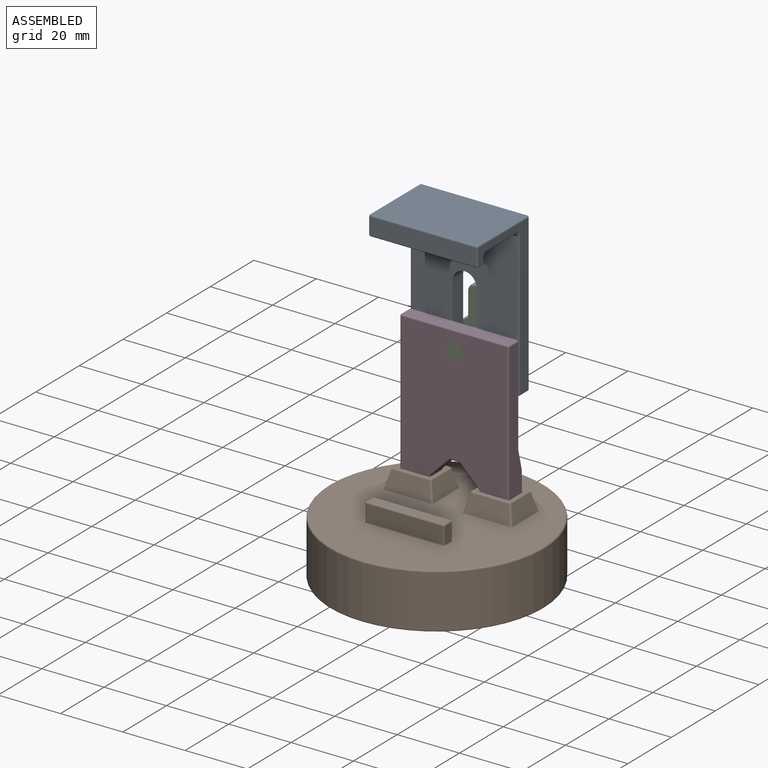
[diagram: assembled view]
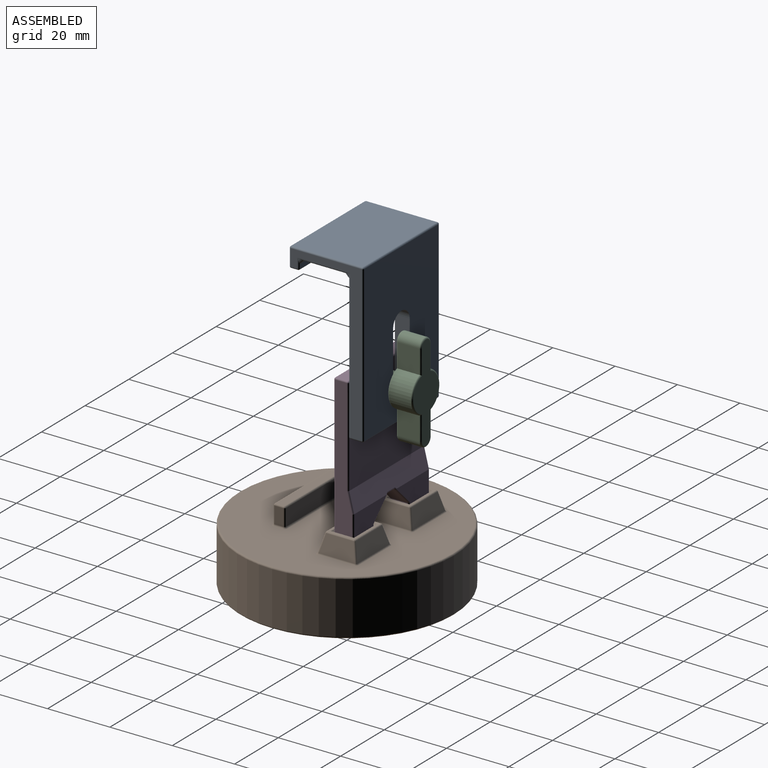
[diagram: assembled view, second angle]
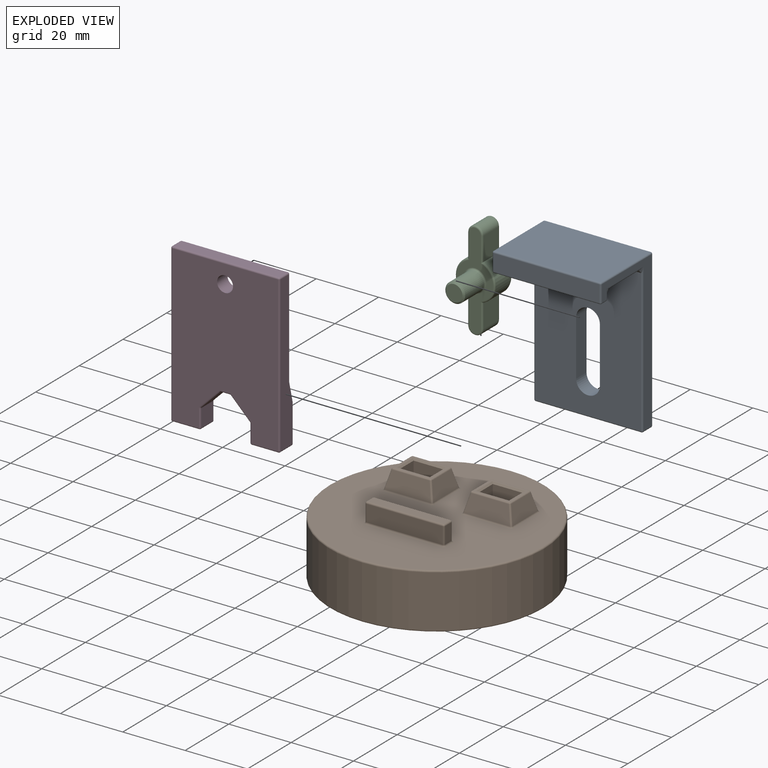
[diagram: exploded view]
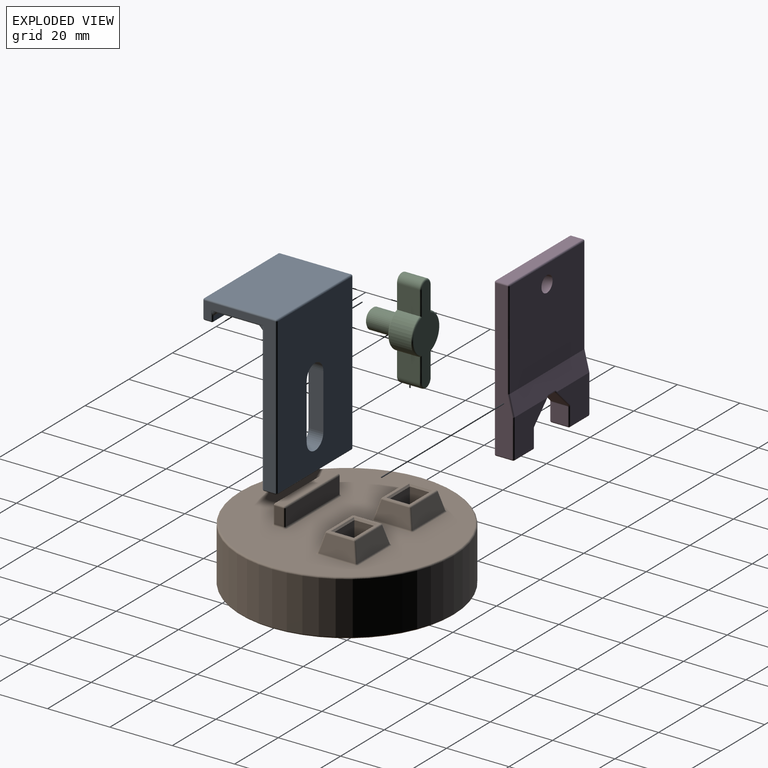
[diagram: exploded view, second angle]
ASSEMBLY  parts=4 mates=4
PART A: 54 faces, bbox 34.9x23.8x50.8 mm
  f0: plane 49.78x33.91mm, normal (0,-1,0), area 1507mm2, adj f10,f11,f12,f13,f33,f42,f43,f47
  f1: plane 33.91x3.75mm, normal (0,0,-1), area 127mm2, adj f36,f41,f44,f47
  f2: plane 45.85x33.91mm, normal (0,1,0), area 1373.5mm2, adj f10,f11,f12,f13,f31,f35,f36,f49
  f3: plane 33.91x13.34mm, normal (0,0,-1), area 452.2mm2, adj f27,f30,f49,f52
  f4: plane 33.91x1.4mm, normal (0,-1,0), area 47.4mm2, adj f17,f22,f26,f52
  f5: plane 33.91x2.16mm, normal (0,0,-1), area 73.2mm2, adj f14,f15,f16,f17
  f6: plane 33.91x5.33mm, normal (0,1,0), area 180.9mm2, adj f15,f23,f24,f25
  f7: plane 33.91x22.8mm, normal (0,0,1), area 773mm2, adj f24,f32,f33,f34
  f8: plane 49.78x22.8mm, normal (-1,0,0), area 234.5mm2, adj f14,f22,f23,f27,f31,f32,f41,f42
  f9: plane 49.78x22.8mm, normal (1,0,0), area 234.5mm2, adj f16,f25,f26,f30,f34,f35,f43,f44
  f10: plane 17.78x4.76mm, normal (1,0,0), area 84.7mm2, adj f0,f2,f11,f13
  f11: cylinder r=3.81mm len=7.62mm, axis (0,-1,0), area 57mm2, adj f0,f2,f10,f12
  f12: plane 17.78x4.76mm, normal (-1,0,0), area 84.7mm2, adj f0,f2,f11,f13
  f13: cylinder r=3.81mm len=7.62mm, axis (0,-1,0), area 57mm2, adj f0,f2,f10,f12
  f14: cylinder r=0.51mm len=2.16mm, axis (0,-1,0), area 1.7mm2, adj f5,f8,f18,f19
  f15: cylinder r=0.51mm len=33.91mm, axis (-1,0,0), area 27.1mm2, adj f5,f6,f19,f20
  f16: cylinder r=0.51mm len=2.16mm, axis (0,1,0), area 1.7mm2, adj f5,f9,f20,f21
  f17: cylinder r=0.51mm len=33.91mm, axis (1,0,0), area 27.1mm2, adj f4,f5,f18,f21
  f18: sphere r=0.51mm, area 0.4mm2, adj f14,f17,f22
  f19: sphere r=0.51mm, area 0.6mm2, adj f14,f15,f23
  f20: sphere r=0.51mm, area 0.3mm2, adj f15,f16,f25
  f21: sphere r=0.51mm, area 0.4mm2, adj f16,f17,f26
  f22: cylinder r=0.51mm len=3.18mm, axis (0,0,1), area 1.6mm2, adj f4,f8,f18,f53
  f23: cylinder r=0.51mm len=5.33mm, axis (0,0,-1), area 4.3mm2, adj f6,f8,f19,f28
  f24: cylinder r=0.51mm len=33.91mm, axis (-1,0,0), area 27.1mm2, adj f6,f7,f28,f29
  f25: cylinder r=0.51mm len=5.33mm, axis (0,0,1), area 4.3mm2, adj f6,f9,f20,f29
  f26: cylinder r=0.51mm len=3.18mm, axis (0,0,-1), area 1.6mm2, adj f4,f9,f21,f51
  f27: cylinder r=0.51mm len=16.89mm, axis (0,-1,0), area 12.1mm2, adj f3,f8,f50,f53
  f28: sphere r=0.51mm, area 0.6mm2, adj f23,f24,f32
  f29: sphere r=0.51mm, area 0.3mm2, adj f24,f25,f34
  f30: cylinder r=0.51mm len=16.89mm, axis (0,1,0), area 12.1mm2, adj f3,f9,f48,f51
  f31: cylinder r=0.51mm len=47.63mm, axis (0,0,-1), area 37.1mm2, adj f2,f8,f37,f50
  f32: cylinder r=0.51mm len=22.8mm, axis (0,1,0), area 18.2mm2, adj f7,f8,f28,f38
  f33: cylinder r=0.51mm len=33.91mm, axis (1,0,0), area 27.1mm2, adj f0,f7,f38,f39
  f34: cylinder r=0.51mm len=22.8mm, axis (0,-1,0), area 18.2mm2, adj f7,f9,f29,f39
  f35: cylinder r=0.51mm len=47.63mm, axis (0,0,1), area 37.1mm2, adj f2,f9,f40,f48
  f36: cylinder r=0.51mm len=33.91mm, axis (-1,0,0), area 27.1mm2, adj f1,f2,f37,f40
  f37: sphere r=0.51mm, area 0.6mm2, adj f31,f36,f41
  f38: sphere r=0.51mm, area 0.4mm2, adj f32,f33,f42
  f39: sphere r=0.51mm, area 0.3mm2, adj f33,f34,f43
  f40: sphere r=0.51mm, area 0.3mm2, adj f35,f36,f44
  f41: cylinder r=0.51mm len=3.75mm, axis (0,-1,0), area 3mm2, adj f1,f8,f37,f45
  f42: cylinder r=0.51mm len=49.78mm, axis (0,0,1), area 39.7mm2, adj f0,f8,f38,f45
  f43: cylinder r=0.51mm len=49.78mm, axis (0,0,-1), area 39.7mm2, adj f0,f9,f39,f46
  f44: cylinder r=0.51mm len=3.75mm, axis (0,1,0), area 3mm2, adj f1,f9,f40,f46
  f45: sphere r=0.51mm, area 0.6mm2, adj f41,f42,f47
  f46: sphere r=0.51mm, area 0.4mm2, adj f43,f44,f47
  f47: cylinder r=0.51mm len=33.91mm, axis (-1,0,0), area 27.1mm2, adj f0,f1,f45,f46
  f48: bspline ~1.8x1.8mm, area 1mm2, adj f30,f35,f49
  f49: plane 33.91x1.27mm, normal (0,0.71,-0.71), area 60.9mm2, adj f2,f3,f48,f50
  f50: bspline ~1.8x1.8mm, area 1mm2, adj f27,f31,f49
  f51: bspline ~1.8x1.8mm, area 1mm2, adj f26,f30,f52
  f52: plane 33.91x1.27mm, normal (0,-0.71,-0.71), area 60.9mm2, adj f3,f4,f51,f53
  f53: bspline ~1.8x1.8mm, area 1mm2, adj f22,f27,f52
PART B: 112 faces, bbox 75.4x75.4x25.4 mm
  f0: plane 11.91x8.73mm, normal (0,0,1), area 26.3mm2, adj f24,f27,f31,f32,f108,f109,f110,f111
  f1: plane 63.4x61.61mm, normal (0,0,-1), area 637.3mm2, adj f6,f7,f8,f13,f16
  f2: bspline ~73.37x63.54mm, area 1319mm2, adj f5,f6,f7,f9,f16,f17
  f3: cylinder r=34.29mm len=68.58mm, axis (0,0,-1), area 3611.8mm2, adj f18,f19
  f4: plane 67.84x67.84mm, normal (0,0,1), area 3010.5mm2, adj f19,f29,f34,f35,f38,f39,f41,f42
  f5: plane 67.6x67.6mm, normal (0,0,-1), area 418.1mm2, adj f2,f9,f17,f18
  f6: cylinder r=31.5mm len=63mm, axis (0,0,-1), area 1774.8mm2, adj f1,f2,f8,f9,f16,f17
  f7: cylinder r=29.25mm len=58.5mm, axis (0,0,1), area 126.8mm2, adj f1,f2,f8,f9,f16
  f8: bspline ~72.75x63mm, area 1215.4mm2, adj f1,f6,f7,f9
  f9: plane 12.67x5.78mm, normal (0.93,0.37,0), area 9.5mm2, adj f2,f5,f6,f7,f8,f17
  f10: cone r=27.43mm half-angle=45deg, axis (0,0,1), area 644.5mm2, adj f13,f15
  f11: cylinder r=24.13mm len=48.26mm, axis (0,0,1), area 369.1mm2, adj f14,f15
  f12: plane 47.75x47.75mm, normal (0,0,-1), area 1790.9mm2, adj f14
  f13: torus R=27.54mm, axis (0,0,-1), area 34.4mm2, adj f1,f10
  f14: torus R=23.88mm, axis (0,0,-1), area 60.3mm2, adj f11,f12
  f15: torus R=24.38mm, axis (0,0,-1), area 91.4mm2, adj f10,f11
  f16: bspline ~28.02x20.74mm, area 2.9mm2, adj f1,f2,f6,f7
  f17: torus R=31.75mm, axis (0,0,1), area 76.9mm2, adj f2,f5,f6,f9
  f18: torus R=33.78mm, axis (0,0,1), area 171mm2, adj f3,f5
  f19: torus R=33.78mm, axis (0,0,1), area 171mm2, adj f3,f4
  f20: plane 14.7x5.58mm, normal (0,0.97,0.24), area 76.5mm2, adj f30,f31,f39,f40
  f21: plane 11.52x5.58mm, normal (0.97,0,0.24), area 58.3mm2, adj f24,f28,f29,f30
  f22: plane 14.7x5.58mm, normal (0,-0.97,0.24), area 76.5mm2, adj f27,f28,f37,f38
  f23: plane 11.52x5.58mm, normal (-0.97,0,0.24), area 58.3mm2, adj f32,f37,f40,f43
  f24: cylinder r=0.51mm len=8.73mm, axis (0,-1,0), area 5.9mm2, adj f0,f21,f25,f26
  f25: sphere r=0.51mm, area 0.3mm2, adj f24,f27,f28
  f26: sphere r=0.51mm, area 0.2mm2, adj f24,f30,f31
  f27: cylinder r=0.51mm len=11.91mm, axis (1,0,0), area 8mm2, adj f0,f22,f25,f33
  f28: cylinder r=0.51mm len=5.63mm, axis (-0.24,0.24,0.94), area 4.5mm2, adj f21,f22,f25,f34
  f29: cylinder r=0.51mm len=11.52mm, axis (0,1,0), area 7.8mm2, adj f4,f21,f34,f35
  f30: cylinder r=0.51mm len=5.63mm, axis (0.24,0.24,-0.94), area 4.5mm2, adj f20,f21,f26,f35
  f31: cylinder r=0.51mm len=11.91mm, axis (1,0,0), area 8mm2, adj f0,f20,f26,f36
  f32: cylinder r=0.51mm len=8.73mm, axis (0,-1,0), area 5.9mm2, adj f0,f23,f33,f36
  f33: sphere r=0.51mm, area 0.2mm2, adj f27,f32,f37
  f34: bspline ~1.04x1.02mm, area 0.7mm2, adj f4,f28,f29,f38
  f35: bspline ~1.01x1.01mm, area 0.7mm2, adj f4,f29,f30,f39
  f36: sphere r=0.51mm, area 0.3mm2, adj f31,f32,f40
  f37: cylinder r=0.51mm len=5.63mm, axis (-0.24,-0.24,-0.94), area 4.5mm2, adj f22,f23,f33,f41
  f38: cylinder r=0.51mm len=14.7mm, axis (-1,0,0), area 9.9mm2, adj f4,f22,f34,f41
  f39: cylinder r=0.51mm len=14.7mm, axis (-1,0,0), area 9.9mm2, adj f4,f20,f35,f42
  f40: cylinder r=0.51mm len=5.63mm, axis (0.24,-0.24,0.94), area 4.5mm2, adj f20,f23,f36,f42
  f41: bspline ~1.01x1.01mm, area 0.7mm2, adj f4,f37,f38,f43
  f42: bspline ~1.04x1.02mm, area 0.7mm2, adj f4,f39,f40,f43
  f43: cylinder r=0.51mm len=11.52mm, axis (0,1,0), area 7.8mm2, adj f4,f23,f41,f42
  f44: plane 6.35x5.84mm, normal (-1,0,0), area 37.1mm2, adj f45,f47,f48,f109
  f45: plane 9.53x5.84mm, normal (0,-1,0), area 55.6mm2, adj f44,f46,f48,f108
  f46: plane 6.35x5.84mm, normal (1,0,0), area 37.1mm2, adj f45,f47,f48,f110
  f47: plane 9.53x5.84mm, normal (0,1,0), area 55.6mm2, adj f44,f46,f48,f111
  f48: plane 9.53x6.35mm, normal (0,0,1), area 60.5mm2, adj f44,f45,f46,f47
  f49: plane 11.91x8.73mm, normal (0,0,1), area 26.3mm2, adj f54,f58,f59,f60,f104,f105,f106,f107
  f50: plane 14.7x5.58mm, normal (0,0.97,0.24), area 76.5mm2, adj f60,f61,f69,f70
  f51: plane 11.52x5.58mm, normal (-0.97,0,0.24), area 58.3mm2, adj f54,f57,f61,f62
  f52: plane 14.7x5.58mm, normal (0,-0.97,0.24), area 76.5mm2, adj f57,f58,f67,f68
  f53: plane 11.52x5.58mm, normal (0.97,0,0.24), area 58.3mm2, adj f59,f68,f69,f73
  f54: cylinder r=0.51mm len=8.73mm, axis (0,-1,0), area 5.9mm2, adj f49,f51,f55,f56
  f55: sphere r=0.51mm, area 0.3mm2, adj f54,f57,f58
  f56: sphere r=0.51mm, area 0.4mm2, adj f54,f60,f61
  f57: cylinder r=0.51mm len=5.63mm, axis (0.24,0.24,0.94), area 4.5mm2, adj f51,f52,f55,f63
  f58: cylinder r=0.51mm len=11.91mm, axis (-1,0,0), area 8mm2, adj f49,f52,f55,f64
  f59: cylinder r=0.51mm len=8.73mm, axis (0,-1,0), area 5.9mm2, adj f49,f53,f64,f65
  f60: cylinder r=0.51mm len=11.91mm, axis (-1,0,0), area 8mm2, adj f49,f50,f56,f65
  f61: cylinder r=0.51mm len=5.63mm, axis (-0.24,0.24,-0.94), area 4.5mm2, adj f50,f51,f56,f66
  f62: cylinder r=0.51mm len=11.52mm, axis (0,1,0), area 7.8mm2, adj f4,f51,f63,f66
  f63: bspline ~1.04x1.02mm, area 0.7mm2, adj f4,f57,f62,f67
  f64: sphere r=0.51mm, area 0.3mm2, adj f58,f59,f68
  f65: sphere r=0.51mm, area 0.2mm2, adj f59,f60,f69
  f66: bspline ~1.01x1.01mm, area 0.7mm2, adj f4,f61,f62,f70
  f67: cylinder r=0.51mm len=14.7mm, axis (1,0,0), area 9.9mm2, adj f4,f52,f63,f71
  f68: cylinder r=0.51mm len=5.63mm, axis (0.24,-0.24,-0.94), area 4.5mm2, adj f52,f53,f64,f71
  f69: cylinder r=0.51mm len=5.63mm, axis (-0.24,-0.24,0.94), area 4.5mm2, adj f50,f53,f65,f72
  f70: cylinder r=0.51mm len=14.7mm, axis (1,0,0), area 9.9mm2, adj f4,f50,f66,f72
  f71: bspline ~1.01x1.01mm, area 0.7mm2, adj f4,f67,f68,f73
  f72: bspline ~1.04x1.02mm, area 0.7mm2, adj f4,f69,f70,f73
  f73: cylinder r=0.51mm len=11.52mm, axis (0,1,0), area 7.8mm2, adj f4,f53,f71,f72
  f74: plane 6.35x5.84mm, normal (1,0,0), area 37.1mm2, adj f75,f77,f78,f105
  f75: plane 9.53x5.84mm, normal (0,1,0), area 55.6mm2, adj f74,f76,f78,f107
  f76: plane 6.35x5.84mm, normal (-1,0,0), area 37.1mm2, adj f75,f77,f78,f106
  f77: plane 9.53x5.84mm, normal (0,-1,0), area 55.6mm2, adj f74,f76,f78,f104
  f78: plane 9.53x6.35mm, normal (0,0,1), area 60.5mm2, adj f74,f75,f76,f77
  f79: plane 24.38x5.33mm, normal (0,1,0), area 130.1mm2, adj f92,f97,f100,f103
  f80: plane 5.33x2.79mm, normal (-1,0,0), area 14.9mm2, adj f89,f98,f99,f103
  f81: plane 24.38x5.33mm, normal (0,-1,0), area 130.1mm2, adj f84,f88,f89,f90
  f82: plane 5.33x2.79mm, normal (1,0,0), area 14.9mm2, adj f84,f87,f91,f92
  f83: plane 24.38x2.79mm, normal (0,0,1), area 68.1mm2, adj f87,f88,f97,f98
  f84: cylinder r=0.51mm len=5.33mm, axis (0,0,1), area 4.3mm2, adj f81,f82,f85,f86
  f85: sphere r=0.51mm, area 0.4mm2, adj f84,f87,f88
  f86: torus R=1.02mm, axis (0,0,1), area 0.9mm2, adj f4,f84,f90,f91
  f87: cylinder r=0.51mm len=2.79mm, axis (0,-1,0), area 2.2mm2, adj f82,f83,f85,f93
  f88: cylinder r=0.51mm len=24.38mm, axis (-1,0,0), area 19.5mm2, adj f81,f83,f85,f94
  f89: cylinder r=0.51mm len=5.33mm, axis (0,0,-1), area 4.3mm2, adj f80,f81,f94,f95
  f90: cylinder r=0.51mm len=24.38mm, axis (1,0,0), area 19.5mm2, adj f4,f81,f86,f95
  f91: cylinder r=0.51mm len=2.79mm, axis (0,1,0), area 2.2mm2, adj f4,f82,f86,f96
  f92: cylinder r=0.51mm len=5.33mm, axis (0,0,-1), area 4.3mm2, adj f79,f82,f93,f96
  f93: sphere r=0.51mm, area 0.3mm2, adj f87,f92,f97
  f94: sphere r=0.51mm, area 0.4mm2, adj f88,f89,f98
  f95: torus R=1.02mm, axis (0,0,1), area 0.9mm2, adj f4,f89,f90,f99
  f96: torus R=1.02mm, axis (0,0,1), area 0.9mm2, adj f4,f91,f92,f100
  f97: cylinder r=0.51mm len=24.38mm, axis (1,0,0), area 19.5mm2, adj f79,f83,f93,f101
  f98: cylinder r=0.51mm len=2.79mm, axis (0,1,0), area 2.2mm2, adj f80,f83,f94,f101
  f99: cylinder r=0.51mm len=2.79mm, axis (0,-1,0), area 2.2mm2, adj f4,f80,f95,f102
  f100: cylinder r=0.51mm len=24.38mm, axis (-1,0,0), area 19.5mm2, adj f4,f79,f96,f102
  f101: sphere r=0.51mm, area 0.6mm2, adj f97,f98,f103
  f102: torus R=1.02mm, axis (0,0,1), area 0.9mm2, adj f4,f99,f100,f103
  f103: cylinder r=0.51mm len=5.33mm, axis (0,0,1), area 4.3mm2, adj f79,f80,f101,f102
  f104: plane 10.54x0.51mm, normal (0,-0.71,0.71), area 7.2mm2, adj f49,f77,f105,f106
  f105: plane 7.37x0.51mm, normal (0.71,0,0.71), area 4.9mm2, adj f49,f74,f104,f107
  f106: plane 7.37x0.51mm, normal (-0.71,0,0.71), area 4.9mm2, adj f49,f76,f104,f107
  f107: plane 10.54x0.51mm, normal (0,0.71,0.71), area 7.2mm2, adj f49,f75,f105,f106
  f108: plane 10.54x0.51mm, normal (0,-0.71,0.71), area 7.2mm2, adj f0,f45,f109,f110
  f109: plane 7.37x0.51mm, normal (-0.71,0,0.71), area 4.9mm2, adj f0,f44,f108,f111
  f110: plane 7.37x0.51mm, normal (0.71,0,0.71), area 4.9mm2, adj f0,f46,f108,f111
  f111: plane 10.54x0.51mm, normal (0,0.71,0.71), area 7.2mm2, adj f0,f47,f109,f110
PART C: 30 faces, bbox 13.7x17.5x32.1 mm
  f0: plane 7.61x6.92mm, normal (-1,0,0), area 52.7mm2, adj f1,f7,f16,f24
  f1: cylinder r=6.35mm len=11.77mm, axis (0,1,0), area 104.3mm2, adj f0,f2,f14,f22
  f2: plane 7.61x6.92mm, normal (-1,0,0), area 52.7mm2, adj f1,f3,f13,f21
  f3: cylinder r=2.38mm len=6.92mm, axis (0,1,0), area 51.8mm2, adj f2,f4,f15,f23
  f4: plane 7.61x6.92mm, normal (1,0,0), area 52.7mm2, adj f3,f5,f17,f25
  f5: cylinder r=6.35mm len=11.77mm, axis (0,1,0), area 104.3mm2, adj f4,f6,f19,f27
  f6: plane 7.61x6.92mm, normal (1,0,0), area 52.7mm2, adj f5,f7,f20,f28
  f7: cylinder r=2.38mm len=6.92mm, axis (0,1,0), area 51.8mm2, adj f0,f6,f18,f26
  f8: plane 30.73x11.68mm, normal (0,-1,0), area 176.3mm2, adj f21,f22,f23,f24,f25,f26,f27,f28
  f9: plane 30.73x11.68mm, normal (0,1,0), area 133.7mm2, adj f12,f13,f14,f15,f16,f17,f18,f19
  f10: cylinder r=3.17mm len=8.51mm, axis (0,-1,0), area 169.7mm2, adj f12,f29
  f11: plane 5.33x5.33mm, normal (0,1,0), area 22.3mm2, adj f29
  f12: torus R=3.68mm, axis (0,-1,0), area 16.8mm2, adj f9,f10
  f13: cylinder r=0.51mm len=7.96mm, axis (0,0,-1), area 6.2mm2, adj f2,f9,f14,f15
  f14: torus R=5.84mm, axis (0,-1,0), area 11.9mm2, adj f1,f9,f13,f16
  f15: torus R=1.87mm, axis (0,-1,0), area 5.5mm2, adj f3,f9,f13,f17
  f16: cylinder r=0.51mm len=7.96mm, axis (0,0,-1), area 6.2mm2, adj f0,f9,f14,f18
  f17: cylinder r=0.51mm len=7.96mm, axis (0,0,1), area 6.2mm2, adj f4,f9,f15,f19
  f18: torus R=1.87mm, axis (0,-1,0), area 5.5mm2, adj f7,f9,f16,f20
  f19: torus R=5.84mm, axis (0,-1,0), area 11.9mm2, adj f5,f9,f17,f20
  f20: cylinder r=0.51mm len=7.96mm, axis (0,0,1), area 6.2mm2, adj f6,f9,f18,f19
  f21: cylinder r=0.51mm len=7.96mm, axis (0,0,1), area 6.2mm2, adj f2,f8,f22,f23
  f22: torus R=5.84mm, axis (0,-1,0), area 11.9mm2, adj f1,f8,f21,f24
  f23: torus R=1.87mm, axis (0,-1,0), area 5.5mm2, adj f3,f8,f21,f25
  f24: cylinder r=0.51mm len=7.96mm, axis (0,0,1), area 6.2mm2, adj f0,f8,f22,f26
  f25: cylinder r=0.51mm len=7.96mm, axis (0,0,-1), area 6.2mm2, adj f4,f8,f23,f27
  f26: torus R=1.87mm, axis (0,-1,0), area 5.5mm2, adj f7,f8,f24,f28
  f27: torus R=5.84mm, axis (0,-1,0), area 11.9mm2, adj f5,f8,f25,f28
  f28: cylinder r=0.51mm len=7.96mm, axis (0,0,-1), area 6.2mm2, adj f6,f8,f26,f27
  f29: cone r=2.67mm half-angle=45deg, axis (0,-1,0), area 13.2mm2, adj f10,f11
PART D: 72 faces, bbox 34.9x6.4x50.8 mm
  f0: plane 49.78x33.91mm, normal (0,-1,0), area 1497.4mm2, adj f13,f21,f26,f31,f32,f36,f40,f41
  f1: plane 14.62x12.19mm, normal (0,1,0), area 122.6mm2, adj f11,f18,f19,f28,f33,f37,f43
  f2: plane 33.91x3.75mm, normal (0,0,1), area 127mm2, adj f30,f38,f39,f40
  f3: plane 49.78x5.33mm, normal (1,0,0), area 210.8mm2, adj f19,f20,f24,f29,f30,f31
  f4: plane 8.51x5.33mm, normal (0,0,-1), area 45.4mm2, adj f17,f18,f20,f21
  f5: plane 14.62x12.19mm, normal (0,1,0), area 122.6mm2, adj f11,f57,f62,f66,f67,f69,f71
  f6: plane 49.78x5.33mm, normal (-1,0,0), area 210.8mm2, adj f39,f48,f49,f53,f57,f58
  f7: plane 8.51x5.33mm, normal (0,0,-1), area 45.4mm2, adj f58,f59,f67,f68
  f8: plane 5.63x5.33mm, normal (1,0,0), area 30mm2, adj f60,f65,f68,f71
  f9: plane 5.63x5.33mm, normal (-1,0,0), area 30mm2, adj f17,f26,f27,f28
  f10: plane 5.19x2.75mm, normal (0,0,-1), area 14.3mm2, adj f42,f46,f51,f52
  f11: plane 33.91x6.35mm, normal (0,0.97,0.24), area 219.2mm2, adj f1,f5,f12,f24,f43,f47,f52,f53
  f12: plane 33.91x31.24mm, normal (0,1,0), area 1038.9mm2, adj f11,f13,f29,f38,f48
  f13: cylinder r=2.55mm len=5.11mm, axis (0,1,0), area 76.4mm2, adj f0,f12
  f14: plane 6.05x6.05mm, normal (0.71,0,-0.71), area 45.6mm2, adj f51,f55,f62,f65,f66
  f15: plane 6.05x6.05mm, normal (-0.71,0,-0.71), area 45.6mm2, adj f27,f36,f37,f42,f43
  f16: sphere r=0.51mm, area 0.4mm2, adj f18,f19,f20
  f17: cylinder r=0.51mm len=5.33mm, axis (0,-1,0), area 4.3mm2, adj f4,f9,f22,f23
  f18: cylinder r=0.51mm len=8.51mm, axis (-1,0,0), area 6.8mm2, adj f1,f4,f16,f23
  f19: cylinder r=0.51mm len=12.19mm, axis (0,0,-1), area 9.7mm2, adj f1,f3,f16,f24
  f20: cylinder r=0.51mm len=5.33mm, axis (0,1,0), area 4.3mm2, adj f3,f4,f16,f25
  f21: cylinder r=0.51mm len=8.51mm, axis (1,0,0), area 6.8mm2, adj f0,f4,f22,f25
  f22: sphere r=0.51mm, area 0.4mm2, adj f17,f21,f26
  f23: sphere r=0.51mm, area 0.4mm2, adj f17,f18,f28
  f24: cylinder r=0.51mm len=6.53mm, axis (0,-0.24,0.97), area 5.2mm2, adj f3,f11,f19,f29
  f25: sphere r=0.51mm, area 0.4mm2, adj f20,f21,f31
  f26: cylinder r=0.51mm len=5.63mm, axis (0,0,1), area 4.5mm2, adj f0,f9,f22,f32
  f27: cylinder r=0.51mm len=5.33mm, axis (0,-1,0), area 2.1mm2, adj f9,f15,f32,f33
  f28: cylinder r=0.51mm len=5.63mm, axis (0,0,1), area 4.5mm2, adj f1,f9,f23,f33
  f29: cylinder r=0.51mm len=31.3mm, axis (0,0,1), area 24.9mm2, adj f3,f12,f24,f34
  f30: cylinder r=0.51mm len=3.75mm, axis (0,-1,0), area 3mm2, adj f2,f3,f34,f35
  f31: cylinder r=0.51mm len=49.78mm, axis (0,0,1), area 39.7mm2, adj f0,f3,f25,f35
  f32: torus R=1.02mm, axis (0,1,0), area 0.4mm2, adj f0,f26,f27,f36
  f33: torus R=1.02mm, axis (0,1,0), area 0.4mm2, adj f1,f27,f28,f37
  f34: sphere r=0.51mm, area 0.4mm2, adj f29,f30,f38
  f35: sphere r=0.51mm, area 0.4mm2, adj f30,f31,f40
  f36: cylinder r=0.51mm len=6.41mm, axis (0.71,0,-0.71), area 6.8mm2, adj f0,f15,f32,f41
  f37: cylinder r=0.51mm len=6.17mm, axis (0.71,0,-0.71), area 6.5mm2, adj f1,f15,f33,f43
  f38: cylinder r=0.51mm len=33.91mm, axis (-1,0,0), area 27.1mm2, adj f2,f12,f34,f44
  f39: cylinder r=0.51mm len=3.75mm, axis (0,1,0), area 3mm2, adj f2,f6,f44,f45
  f40: cylinder r=0.51mm len=33.91mm, axis (-1,0,0), area 27.1mm2, adj f0,f2,f35,f45
  f41: torus R=1.02mm, axis (0,1,0), area 0.4mm2, adj f0,f36,f42,f46
  f42: cylinder r=0.51mm len=5.27mm, axis (0,-1,0), area 2.1mm2, adj f10,f15,f41,f47
  f43: cylinder r=0.51mm len=0.82mm, axis (0.7,0.17,-0.7), area 0.4mm2, adj f1,f11,f15,f37,f47
  f44: sphere r=0.51mm, area 0.4mm2, adj f38,f39,f48
  f45: sphere r=0.51mm, area 0.4mm2, adj f39,f40,f49
  f46: cylinder r=0.51mm len=2.75mm, axis (-1,0,0), area 2.2mm2, adj f0,f10,f41,f50
  f47: bspline ~0.79x0.73mm, area 0.5mm2, adj f11,f42,f43,f52
  f48: cylinder r=0.51mm len=31.3mm, axis (0,0,1), area 24.9mm2, adj f6,f12,f44,f53
  f49: cylinder r=0.51mm len=49.78mm, axis (0,0,-1), area 39.7mm2, adj f0,f6,f45,f54
  f50: torus R=1.02mm, axis (0,1,0), area 0.4mm2, adj f0,f46,f51,f55
  f51: cylinder r=0.51mm len=5.27mm, axis (0,-1,0), area 2.1mm2, adj f10,f14,f50,f56
  f52: cylinder r=0.51mm len=2.75mm, axis (-1,0,0), area 2.5mm2, adj f10,f11,f47,f56
  f53: cylinder r=0.51mm len=6.53mm, axis (0,-0.24,0.97), area 5.2mm2, adj f6,f11,f48,f57
  f54: sphere r=0.51mm, area 0.4mm2, adj f49,f58,f59
  f55: cylinder r=0.51mm len=6.41mm, axis (-0.71,0,-0.71), area 6.8mm2, adj f0,f14,f50,f61
  f56: bspline ~0.79x0.73mm, area 0.5mm2, adj f11,f51,f52,f62
  f57: cylinder r=0.51mm len=12.19mm, axis (0,0,1), area 9.7mm2, adj f5,f6,f53,f63
  f58: cylinder r=0.51mm len=5.33mm, axis (0,-1,0), area 4.3mm2, adj f6,f7,f54,f63
  f59: cylinder r=0.51mm len=8.51mm, axis (1,0,0), area 6.8mm2, adj f0,f7,f54,f64
  f60: cylinder r=0.51mm len=5.63mm, axis (0,0,-1), area 4.5mm2, adj f0,f8,f61,f64
  f61: torus R=1.02mm, axis (0,1,0), area 0.4mm2, adj f0,f55,f60,f65
  f62: cylinder r=0.51mm len=0.82mm, axis (-0.7,0.17,-0.7), area 0.4mm2, adj f5,f11,f14,f56,f66
  f63: sphere r=0.51mm, area 0.4mm2, adj f57,f58,f67
  f64: sphere r=0.51mm, area 0.4mm2, adj f59,f60,f68
  f65: cylinder r=0.51mm len=5.33mm, axis (0,1,0), area 2.1mm2, adj f8,f14,f61,f69
  f66: cylinder r=0.51mm len=6.17mm, axis (-0.71,0,-0.71), area 6.5mm2, adj f5,f14,f62,f69
  f67: cylinder r=0.51mm len=8.51mm, axis (-1,0,0), area 6.8mm2, adj f5,f7,f63,f70
  f68: cylinder r=0.51mm len=5.33mm, axis (0,1,0), area 4.3mm2, adj f7,f8,f64,f70
  f69: torus R=1.02mm, axis (0,1,0), area 0.4mm2, adj f5,f65,f66,f71
  f70: sphere r=0.51mm, area 0.4mm2, adj f67,f68,f71
  f71: cylinder r=0.51mm len=5.63mm, axis (0,0,-1), area 4.5mm2, adj f5,f8,f69,f70
PLACE A rot(axis=(0,0,1),180deg) t=(14.96,59.98,69.51)mm
PLACE B t=(14.96,42.52,17.44)mm
PLACE C rot(axis=(1,0,0),180deg) t=(14.96,59.98,79.67)mm
PLACE D t=(14.96,53.63,35.22)mm
MATE planar C.f5 <-> A.f0  axis (0,-1,0) through (14.96,59.98,79.67)mm
MATE planar D.f3 <-> B.f76  axis (1,0,0) through (32.42,53.14,58.64)mm
MATE planar D.f4 <-> B.f78  axis (0,0,-1) through (27.66,53.63,35.22)mm
MATE planar D.f1 <-> B.f77  axis (0,1,0) through (26.69,56.81,42.45)mm
